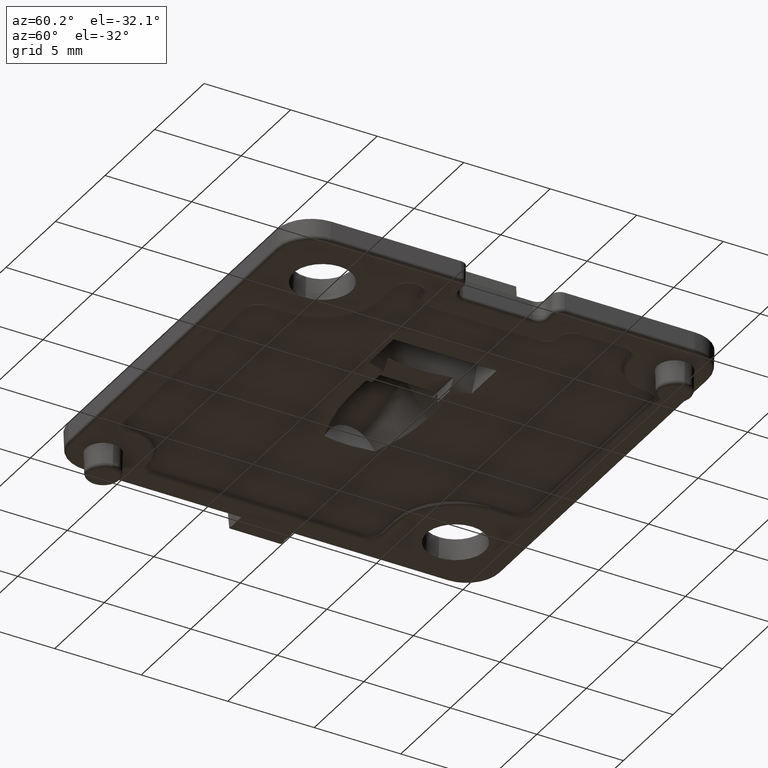
[diagram: clean part render]
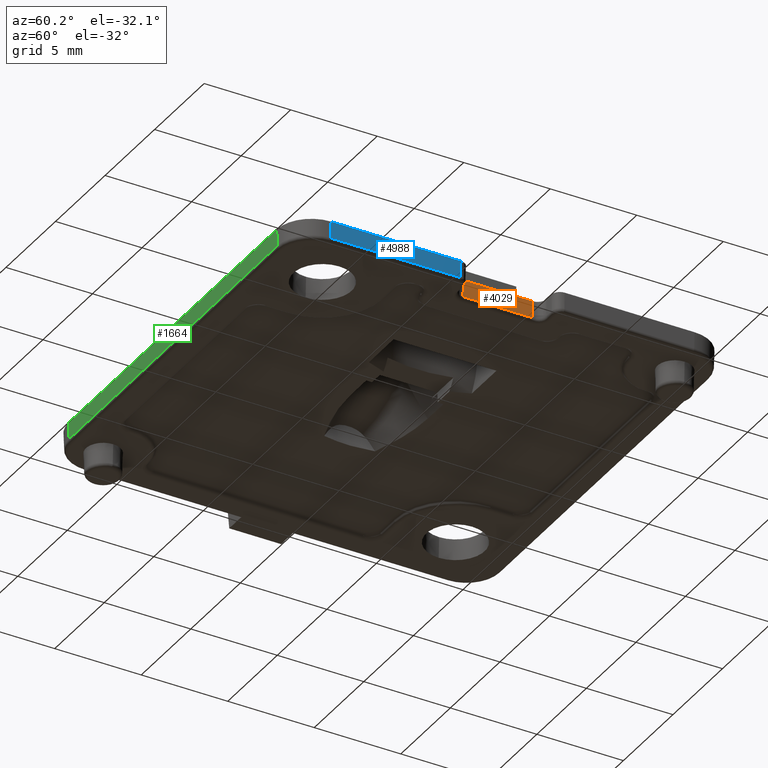
[diagram: same view with three faces highlighted in distinct colors, each labeled with its STEP entity id]
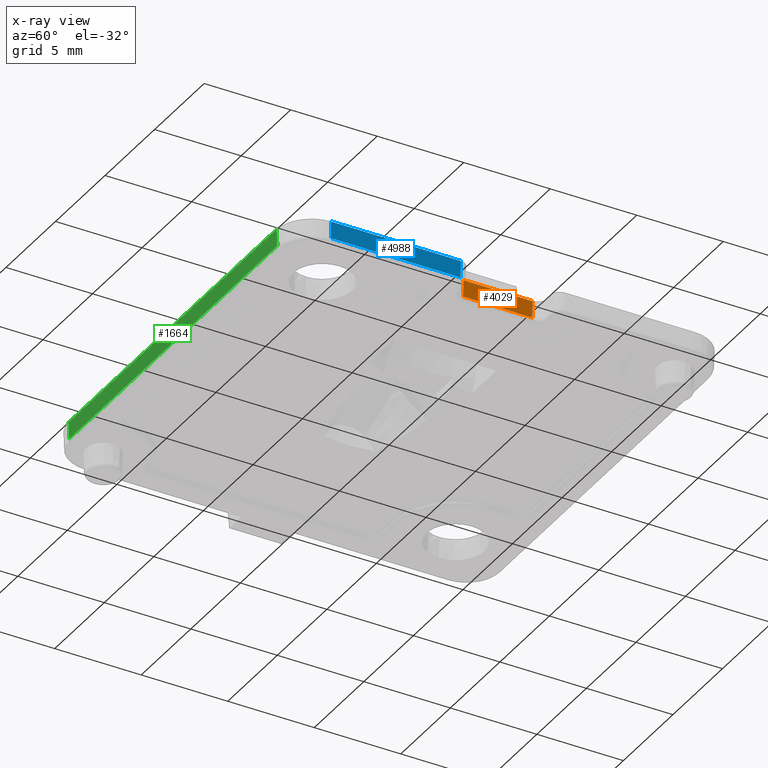
[diagram: x-ray of the same camera — body ghosted, the three highlighted faces saturated]
A machine part, auxiliary view with three faces highlighted in distinct colors.
The next image is the same camera in x-ray (body ghosted, the three faces saturated) — at least one of them is partly hidden behind the body in this view.
Their STEP definitions:

[orange] entity #4029 — the highlighted planar face has unit normal (0.9994, 0, -0.0349).
#250 = PLANE ( 'NONE',  #7436 ) ;
#301 = DIRECTION ( 'NONE',  ( -0.0000000000000000000, 1.000000000000000000, -0.0000000000000000000 ) ) ;
#470 = VECTOR ( 'NONE', #6131, 1000.000000000000200 ) ;
#839 = CARTESIAN_POINT ( 'NONE',  ( 10.99999999999999800, -2.000000000000000900, 1.700000000000000000 ) ) ;
#904 = DIRECTION ( 'NONE',  ( -0.03489949670250104600, 0.0000000000000000000, -0.9993908270190956500 ) ) ;
#1648 = VECTOR ( 'NONE', #2806, 1000.000000000000000 ) ;
#2173 = CARTESIAN_POINT ( 'NONE',  ( 10.96652058966290600, -2.000000000000000900, 0.7412751258243749400 ) ) ;
#2184 = CARTESIAN_POINT ( 'NONE',  ( 10.99999999999999800, 0.0000000000000000000, 1.700000000000000200 ) ) ;
#2760 = CARTESIAN_POINT ( 'NONE',  ( 10.99999999999999800, 0.0000000000000000000, 1.700000000000000000 ) ) ;
#2806 = DIRECTION ( 'NONE',  ( 0.0000000000000000000, 1.000000000000000000, 0.0000000000000000000 ) ) ;
#2901 = CARTESIAN_POINT ( 'NONE',  ( 10.99999999999999800, -2.000000000000000900, 1.700000000000000200 ) ) ;
#2940 = LINE ( 'NONE', #839, #4620 ) ;
#3116 = EDGE_CURVE ( 'NONE', #7806, #3626, #2940, .T. ) ;
#3144 = VERTEX_POINT ( 'NONE', #5201 ) ;
#3282 = DIRECTION ( 'NONE',  ( -0.03489949670250104600, -0.0000000000000000000, -0.9993908270190956500 ) ) ;
#3626 = VERTEX_POINT ( 'NONE', #2173 ) ;
#4029 = ADVANCED_FACE ( 'NONE', ( #6890 ), #250, .T. ) ;
#4079 = VECTOR ( 'NONE', #301, 1000.000000000000000 ) ;
#4109 = EDGE_LOOP ( 'NONE', ( #6497, #5068, #6578, #4688 ) ) ;
#4620 = VECTOR ( 'NONE', #3282, 1000.000000000000200 ) ;
#4655 = DIRECTION ( 'NONE',  ( 0.9993908270190957600, 0.0000000000000000000, -0.03489949670250105200 ) ) ;
#4688 = ORIENTED_EDGE ( 'NONE', *, *, #6693, .F. ) ;
#4712 = EDGE_CURVE ( 'NONE', #3144, #7446, #5660, .T. ) ;
#5068 = ORIENTED_EDGE ( 'NONE', *, *, #5518, .T. ) ;
#5201 = CARTESIAN_POINT ( 'NONE',  ( 10.99999999999999800, 2.000000000000000000, 1.700000000000000200 ) ) ;
#5259 = LINE ( 'NONE', #7134, #1648 ) ;
#5518 = EDGE_CURVE ( 'NONE', #3626, #7446, #5259, .T. ) ;
#5522 = CARTESIAN_POINT ( 'NONE',  ( 10.99999999999999800, 2.000000000000000000, 1.700000000000000000 ) ) ;
#5660 = LINE ( 'NONE', #5522, #470 ) ;
#5692 = LINE ( 'NONE', #2184, #4079 ) ;
#6131 = DIRECTION ( 'NONE',  ( -0.03489949670250104600, 0.0000000000000000000, -0.9993908270190956500 ) ) ;
#6497 = ORIENTED_EDGE ( 'NONE', *, *, #3116, .T. ) ;
#6578 = ORIENTED_EDGE ( 'NONE', *, *, #4712, .F. ) ;
#6693 = EDGE_CURVE ( 'NONE', #7806, #3144, #5692, .T. ) ;
#6783 = CARTESIAN_POINT ( 'NONE',  ( 10.96652058966290600, 2.000000000000000000, 0.7412751258243749400 ) ) ;
#6890 = FACE_OUTER_BOUND ( 'NONE', #4109, .T. ) ;
#7134 = CARTESIAN_POINT ( 'NONE',  ( 10.96652058966290600, 0.0000000000000000000, 0.7412751258243748300 ) ) ;
#7436 = AXIS2_PLACEMENT_3D ( 'NONE', #2760, #4655, #904 ) ;
#7446 = VERTEX_POINT ( 'NONE', #6783 ) ;
#7806 = VERTEX_POINT ( 'NONE', #2901 ) ;

[blue] entity #4988 — the highlighted planar face has unit normal (0.9994, 0, -0.0349).
#57 = LINE ( 'NONE', #917, #6512 ) ;
#290 = DIRECTION ( 'NONE',  ( -0.03489949670250104600, -0.0000000000000000000, -0.9993908270190956500 ) ) ;
#838 = ORIENTED_EDGE ( 'NONE', *, *, #5842, .F. ) ;
#842 = EDGE_LOOP ( 'NONE', ( #4306, #7161, #838, #1931 ) ) ;
#917 = CARTESIAN_POINT ( 'NONE',  ( 12.49999999999999600, -3.000000000000000400, 1.700000000000000000 ) ) ;
#1538 = EDGE_CURVE ( 'NONE', #6743, #7182, #2958, .T. ) ;
#1551 = CARTESIAN_POINT ( 'NONE',  ( 12.46652058966290600, -3.000000000000000400, 0.7412751258243749400 ) ) ;
#1560 = CARTESIAN_POINT ( 'NONE',  ( 12.46652058966290600, -10.50000000000000000, 0.7412751258243749400 ) ) ;
#1744 = LINE ( 'NONE', #3549, #6692 ) ;
#1931 = ORIENTED_EDGE ( 'NONE', *, *, #5909, .F. ) ;
#2285 = VERTEX_POINT ( 'NONE', #5694 ) ;
#2403 = CARTESIAN_POINT ( 'NONE',  ( 12.49999999999999600, 0.0000000000000000000, 1.700000000000000000 ) ) ;
#2712 = CARTESIAN_POINT ( 'NONE',  ( 12.49999999999999600, -3.000000000000000400, 1.700000000000000200 ) ) ;
#2958 = LINE ( 'NONE', #3512, #6065 ) ;
#3031 = DIRECTION ( 'NONE',  ( -0.03489949670250104600, 0.0000000000000000000, -0.9993908270190956500 ) ) ;
#3158 = DIRECTION ( 'NONE',  ( -0.03489949670250104600, -0.0000000000000000000, -0.9993908270190956500 ) ) ;
#3512 = CARTESIAN_POINT ( 'NONE',  ( 12.46652058966290600, 0.0000000000000000000, 0.7412751258243748300 ) ) ;
#3549 = CARTESIAN_POINT ( 'NONE',  ( 12.49999999999999600, 0.0000000000000000000, 1.700000000000000200 ) ) ;
#4306 = ORIENTED_EDGE ( 'NONE', *, *, #4476, .T. ) ;
#4326 = FACE_OUTER_BOUND ( 'NONE', #842, .T. ) ;
#4476 = EDGE_CURVE ( 'NONE', #2285, #6743, #5363, .T. ) ;
#4881 = PLANE ( 'NONE',  #5743 ) ;
#4988 = ADVANCED_FACE ( 'NONE', ( #4326 ), #4881, .T. ) ;
#5363 = LINE ( 'NONE', #7482, #6602 ) ;
#5694 = CARTESIAN_POINT ( 'NONE',  ( 12.49999999999999600, -10.50000000000000000, 1.700000000000000200 ) ) ;
#5743 = AXIS2_PLACEMENT_3D ( 'NONE', #2403, #6724, #3031 ) ;
#5842 = EDGE_CURVE ( 'NONE', #7656, #7182, #57, .T. ) ;
#5909 = EDGE_CURVE ( 'NONE', #2285, #7656, #1744, .T. ) ;
#6065 = VECTOR ( 'NONE', #7822, 1000.000000000000000 ) ;
#6512 = VECTOR ( 'NONE', #290, 1000.000000000000200 ) ;
#6602 = VECTOR ( 'NONE', #3158, 1000.000000000000200 ) ;
#6692 = VECTOR ( 'NONE', #7224, 1000.000000000000000 ) ;
#6724 = DIRECTION ( 'NONE',  ( 0.9993908270190957600, 0.0000000000000000000, -0.03489949670250105200 ) ) ;
#6743 = VERTEX_POINT ( 'NONE', #1560 ) ;
#7161 = ORIENTED_EDGE ( 'NONE', *, *, #1538, .T. ) ;
#7182 = VERTEX_POINT ( 'NONE', #1551 ) ;
#7224 = DIRECTION ( 'NONE',  ( -0.0000000000000000000, 1.000000000000000000, -0.0000000000000000000 ) ) ;
#7482 = CARTESIAN_POINT ( 'NONE',  ( 12.49999999999999600, -10.50000000000000000, 1.700000000000000000 ) ) ;
#7656 = VERTEX_POINT ( 'NONE', #2712 ) ;
#7822 = DIRECTION ( 'NONE',  ( 0.0000000000000000000, 1.000000000000000000, 0.0000000000000000000 ) ) ;

[green] entity #1664 — the highlighted planar face has unit normal (0, -0.9994, -0.0349).
#61 = LINE ( 'NONE', #7821, #3233 ) ;
#110 = ORIENTED_EDGE ( 'NONE', *, *, #3671, .F. ) ;
#360 = DIRECTION ( 'NONE',  ( -2.882903629981130700E-018, 0.03489949670250104600, -0.9993908270190956500 ) ) ;
#577 = CARTESIAN_POINT ( 'NONE',  ( 10.49999999999999800, -12.50000000000000000, 1.700000000000000200 ) ) ;
#762 = ORIENTED_EDGE ( 'NONE', *, *, #1333, .T. ) ;
#802 = VERTEX_POINT ( 'NONE', #2170 ) ;
#1017 = LINE ( 'NONE', #6945, #1210 ) ;
#1210 = VECTOR ( 'NONE', #2623, 1000.000000000000000 ) ;
#1274 = CARTESIAN_POINT ( 'NONE',  ( 10.49999999999999800, -12.50000000000000000, 1.700000000000000000 ) ) ;
#1329 = AXIS2_PLACEMENT_3D ( 'NONE', #5534, #6745, #3047 ) ;
#1333 = EDGE_CURVE ( 'NONE', #1823, #6496, #1017, .T. ) ;
#1664 = ADVANCED_FACE ( 'NONE', ( #5878 ), #3623, .T. ) ;
#1823 = VERTEX_POINT ( 'NONE', #3217 ) ;
#1845 = LINE ( 'NONE', #1274, #5171 ) ;
#2170 = CARTESIAN_POINT ( 'NONE',  ( -10.49999999999999800, -12.50000000000000400, 1.700000000000000200 ) ) ;
#2623 = DIRECTION ( 'NONE',  ( 1.000000000000000000, 8.260587980841940000E-017, -1.156315118484111200E-033 ) ) ;
#2647 = VECTOR ( 'NONE', #6527, 1000.000000000000000 ) ;
#3047 = DIRECTION ( 'NONE',  ( 0.0000000000000000000, 0.03489949670250104600, -0.9993908270190956500 ) ) ;
#3081 = EDGE_LOOP ( 'NONE', ( #7731, #762, #6774, #110 ) ) ;
#3217 = CARTESIAN_POINT ( 'NONE',  ( -10.49999999999999800, -12.46652058966291100, 0.7412751258243749400 ) ) ;
#3233 = VECTOR ( 'NONE', #360, 1000.000000000000200 ) ;
#3400 = VERTEX_POINT ( 'NONE', #577 ) ;
#3623 = PLANE ( 'NONE',  #1329 ) ;
#3671 = EDGE_CURVE ( 'NONE', #802, #3400, #5572, .T. ) ;
#4154 = EDGE_CURVE ( 'NONE', #802, #1823, #61, .T. ) ;
#4449 = EDGE_CURVE ( 'NONE', #3400, #6496, #1845, .T. ) ;
#5171 = VECTOR ( 'NONE', #5635, 1000.000000000000200 ) ;
#5534 = CARTESIAN_POINT ( 'NONE',  ( 1.032573497605242800E-015, -12.50000000000000400, 1.700000000000000000 ) ) ;
#5572 = LINE ( 'NONE', #5922, #2647 ) ;
#5635 = DIRECTION ( 'NONE',  ( -0.0000000000000000000, 0.03489949670250104600, -0.9993908270190956500 ) ) ;
#5878 = FACE_OUTER_BOUND ( 'NONE', #3081, .T. ) ;
#5922 = CARTESIAN_POINT ( 'NONE',  ( 1.032573497605242800E-015, -12.50000000000000400, 1.700000000000000200 ) ) ;
#6172 = CARTESIAN_POINT ( 'NONE',  ( 10.49999999999999800, -12.46652058966291000, 0.7412751258243749400 ) ) ;
#6496 = VERTEX_POINT ( 'NONE', #6172 ) ;
#6527 = DIRECTION ( 'NONE',  ( 1.000000000000000000, 8.260587980841941200E-017, -0.0000000000000000000 ) ) ;
#6745 = DIRECTION ( 'NONE',  ( 8.255555853837630600E-017, -0.9993908270190957600, -0.03489949670250105200 ) ) ;
#6774 = ORIENTED_EDGE ( 'NONE', *, *, #4449, .F. ) ;
#6945 = CARTESIAN_POINT ( 'NONE',  ( 1.029807901458880400E-015, -12.46652058966291100, 0.7412751258243748300 ) ) ;
#7731 = ORIENTED_EDGE ( 'NONE', *, *, #4154, .T. ) ;
#7821 = CARTESIAN_POINT ( 'NONE',  ( -10.49999999999999800, -12.50000000000000400, 1.700000000000000000 ) ) ;